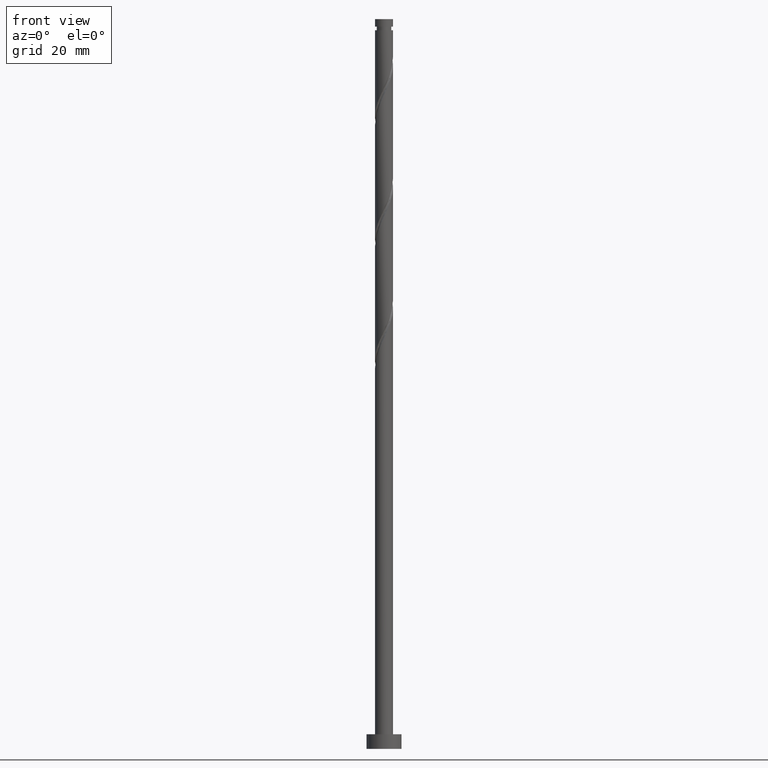
[diagram: clean part render]
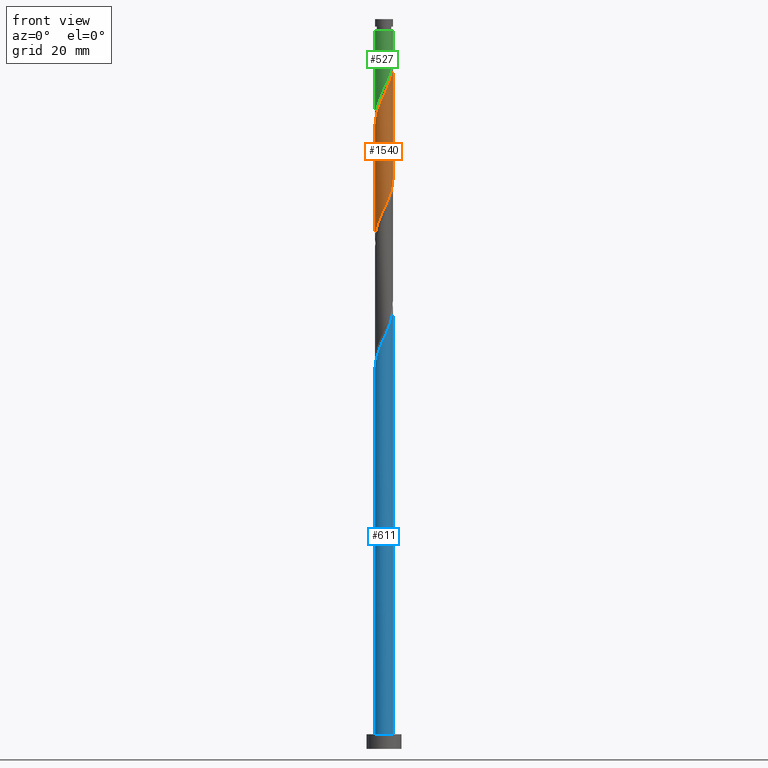
[diagram: same view with three faces highlighted in distinct colors, each labeled with its STEP entity id]
A machine part, front view with three faces highlighted in distinct colors.
Their STEP definitions:

[orange] entity #1540 — the highlighted cylindrical surface (edge-blend (fillet) strip) has radius 3.1 mm, axis along (-0, -0, -1).
#12 = CARTESIAN_POINT ( 'NONE',  ( -2.249877174969357796, -2.165579781819274352, 179.6742107631080785 ) ) ;
#26 = EDGE_LOOP ( 'NONE', ( #1760, #1744, #773, #1634 ) ) ;
#29 = CARTESIAN_POINT ( 'NONE',  ( -3.100000000000004974, -3.365086169989463498E-15, 213.6026991436264098 ) ) ;
#37 = CARTESIAN_POINT ( 'NONE',  ( -3.060313128317948994, -0.6214230849569027937, 214.9306210195183837 ) ) ;
#67 = CARTESIAN_POINT ( 'NONE',  ( 2.702756997303928266, -1.564221118447518100, 230.9562620451593205 ) ) ;
#97 = CARTESIAN_POINT ( 'NONE',  ( 2.941491420319844341, -0.9785848068434037650, 193.2960056349029117 ) ) ;
#162 = CARTESIAN_POINT ( 'NONE',  ( 1.227034829342569244, -2.871596876557147571, 187.6870312759285753 ) ) ;
#191 = CARTESIAN_POINT ( 'NONE',  ( -1.227034829342573019, -2.871596876557151123, 221.3408774297747073 ) ) ;
#198 = VECTOR ( 'NONE', #568, 1000.000000000000000 ) ;
#213 = EDGE_CURVE ( 'NONE', #940, #393, #728, .T. ) ;
#216 = CARTESIAN_POINT ( 'NONE',  ( 3.100000000000005418, -1.301166652395925986E-15, 234.4360324769597810 ) ) ;
#237 = CARTESIAN_POINT ( 'NONE',  ( 2.249877174969360460, -2.165579781819279237, 229.3536979425952325 ) ) ;
#252 = EDGE_CURVE ( 'NONE', #254, #551, #858, .T. ) ;
#254 = VERTEX_POINT ( 'NONE', #986 ) ;
#288 = CARTESIAN_POINT ( 'NONE',  ( -0.6168922110061065833, -3.037999999999998924, 183.6806210195183269 ) ) ;
#296 = DIRECTION ( 'NONE',  ( -0.000000000000000000, -0.000000000000000000, -1.000000000000000000 ) ) ;
#298 = CARTESIAN_POINT ( 'NONE',  ( -0.9857721960353348356, -2.963095724305272238, 182.8793389682362829 ) ) ;
#308 = CARTESIAN_POINT ( 'NONE',  ( -3.100000000000000533, -0.2518949594648391410, 175.1315769660918704 ) ) ;
#345 = CARTESIAN_POINT ( 'NONE',  ( 2.850659702190538436, -1.218088363915763805, 231.7575440964413644 ) ) ;
#391 =( BOUNDED_CURVE ( )  B_SPLINE_CURVE ( 2, ( #29, #607, #1033, #37, #1593, #1182, #1005, #1043, #588, #896, #762, #191, #1321, #1153, #476, #768, #1616, #655, #1495, #1052, #1633, #237, #484, #67, #345, #1785, #930, #952, #216 ),
 .UNSPECIFIED., .F., .T. ) 
 B_SPLINE_CURVE_WITH_KNOTS ( ( 3, 2, 2, 2, 2, 2, 2, 2, 2, 2, 2, 2, 2, 2, 3 ),
 ( 0.5545271625973829943, 0.5576923076923077094, 0.5673076923076922906, 0.5769230769230768718, 0.5865384615384615641, 0.5961538461538461453, 0.6057692307692308376, 0.6153846153846154188, 0.6250000000000000000, 0.6346153846153845812, 0.6442307692307691624, 0.6538461538461538547, 0.6634615384615384359, 0.6730769230769231282, 0.6795271625973829943 ),
 .UNSPECIFIED. ) 
 CURVE ( )  GEOMETRIC_REPRESENTATION_ITEM ( )  RATIONAL_B_SPLINE_CURVE ( ( 0.9061636035682938406, 0.9069090390690823789, 0.9090909090909391477, 0.9024626128164425776, 0.9090909090909391477, 0.9024626128164425776, 0.9090909090909391477, 0.9024626128164425776, 0.9090909090909391477, 0.9024626128164425776, 0.9090909090909391477, 0.9024626128164425776, 0.9090909090909391477, 0.9024626128164425776, 0.9090909090909391477, 0.9024626128164425776, 0.9090909090909391477, 0.9024626128164425776, 0.9090909090909391477, 0.9024626128164425776, 0.9090909090909391477, 0.9024626128164425776, 0.9090909090909391477, 0.9024626128164425776, 0.9090909090909391477, 0.9024626128164425776, 0.9090909090909391477, 0.9046444828382993464, 0.9061636035682938406 ) ) 
 REPRESENTATION_ITEM ( '' )  );
#393 = VERTEX_POINT ( 'NONE', #1120 ) ;
#422 = CARTESIAN_POINT ( 'NONE',  ( -3.059332338079530089, -0.5004854095583951556, 175.6678005066978017 ) ) ;
#431 = CARTESIAN_POINT ( 'NONE',  ( 0.8655980712550801481, -2.976699511042302237, 186.8857492246465029 ) ) ;
#476 = CARTESIAN_POINT ( 'NONE',  ( -0.1280745435953581091, -3.097353210611097918, 223.7447235836208392 ) ) ;
#484 = CARTESIAN_POINT ( 'NONE',  ( 2.476317086136644807, -1.864900450133398335, 230.1549799938773333 ) ) ;
#546 = CARTESIAN_POINT ( 'NONE',  ( 3.099999999999999201, -0.1232967040439896661, 195.1610386464438420 ) ) ;
#551 = VERTEX_POINT ( 'NONE', #582 ) ;
#560 = CARTESIAN_POINT ( 'NONE',  ( -1.326007432615845527, -2.802089272069598014, 182.0780569169542105 ) ) ;
#568 = DIRECTION ( 'NONE',  ( -0.000000000000000000, -0.000000000000000000, -1.000000000000000000 ) ) ;
#570 = CARTESIAN_POINT ( 'NONE',  ( 0.5041613131675897197, -3.081802145527458237, 186.0844671733645157 ) ) ;
#578 = CARTESIAN_POINT ( 'NONE',  ( 2.149790266979321185, -2.233473037222740931, 190.0908774297747073 ) ) ;
#582 = CARTESIAN_POINT ( 'NONE',  ( -3.099999999999999645, -5.384137871983187194E-15, 174.5918762287435584 ) ) ;
#588 = CARTESIAN_POINT ( 'NONE',  ( -2.149790266979325626, -2.233473037222744484, 218.9370312759286037 ) ) ;
#607 = CARTESIAN_POINT ( 'NONE',  ( -3.100000000000006306, -0.1232967040439696543, 213.8668700592593552 ) ) ;
#631 = CARTESIAN_POINT ( 'NONE',  ( 2.621826352477048871, -1.654093884112051382, 191.6934415323388521 ) ) ;
#655 = CARTESIAN_POINT ( 'NONE',  ( 0.9857721960353340585, -2.963095724305278011, 226.1485697374669996 ) ) ;
#728 = LINE ( 'NONE', #1715, #1215 ) ;
#762 = CARTESIAN_POINT ( 'NONE',  ( -1.552816185334434218, -2.683050855754219199, 220.5395953784926633 ) ) ;
#768 = CARTESIAN_POINT ( 'NONE',  ( 0.2480122259768770543, -3.112904275694731826, 224.5460056349029117 ) ) ;
#773 = ORIENTED_EDGE ( 'NONE', *, *, #252, .T. ) ;
#809 = CARTESIAN_POINT ( 'NONE',  ( 3.060313128317944109, -0.6214230849569032378, 194.0972876861849556 ) ) ;
#850 = CARTESIAN_POINT ( 'NONE',  ( -2.850659702190533551, -1.218088363915760253, 177.2703646092619181 ) ) ;
#858 = LINE ( 'NONE', #1143, #198 ) ;
#882 =( BOUNDED_CURVE ( )  B_SPLINE_CURVE ( 2, ( #945, #546, #1094, #809, #97, #1499, #631, #1197, #578, #1697, #1572, #162, #431, #570, #1294, #1151, #288, #298, #560, #1304, #1688, #12, #1438, #1680, #850, #1278, #422, #308, #1142 ),
 .UNSPECIFIED., .F., .T. ) 
 B_SPLINE_CURVE_WITH_KNOTS ( ( 3, 2, 2, 2, 2, 2, 2, 2, 2, 2, 2, 2, 2, 2, 3 ),
 ( 0.5545271625973834384, 0.5576923076923077094, 0.5673076923076922906, 0.5769230769230768718, 0.5865384615384615641, 0.5961538461538461453, 0.6057692307692307265, 0.6153846153846154188, 0.6250000000000000000, 0.6346153846153845812, 0.6442307692307692735, 0.6538461538461538547, 0.6634615384615384359, 0.6730769230769231282, 0.6795271625973833274 ),
 .UNSPECIFIED. ) 
 CURVE ( )  GEOMETRIC_REPRESENTATION_ITEM ( )  RATIONAL_B_SPLINE_CURVE ( ( 0.9061636035682865131, 0.9069090390690751624, 0.9090909090909315982, 0.9024626128164350281, 0.9090909090909315982, 0.9024626128164350281, 0.9090909090909315982, 0.9024626128164350281, 0.9090909090909315982, 0.9024626128164350281, 0.9090909090909315982, 0.9024626128164350281, 0.9090909090909315982, 0.9024626128164350281, 0.9090909090909315982, 0.9024626128164350281, 0.9090909090909315982, 0.9024626128164350281, 0.9090909090909315982, 0.9024626128164350281, 0.9090909090909315982, 0.9024626128164350281, 0.9090909090909315982, 0.9024626128164350281, 0.9090909090909315982, 0.9024626128164350281, 0.9090909090909315982, 0.9046444828382915748, 0.9061636035682864021 ) ) 
 REPRESENTATION_ITEM ( '' )  );
#896 = CARTESIAN_POINT ( 'NONE',  ( -1.878597541326294751, -2.494504834951287275, 219.7383133272106477 ) ) ;
#920 = CARTESIAN_POINT ( 'NONE',  ( 0.000000000000000000, 0.000000000000000000, 250.0000000000000000 ) ) ;
#930 = CARTESIAN_POINT ( 'NONE',  ( 3.059332338079534974, -0.5004854095583980422, 233.3601081990055093 ) ) ;
#939 = FACE_OUTER_BOUND ( 'NONE', #26, .T. ) ;
#940 = VERTEX_POINT ( 'NONE', #1035 ) ;
#945 = CARTESIAN_POINT ( 'NONE',  ( 3.099999999999999645, 4.112883096653824131E-15, 195.4252095620768159 ) ) ;
#952 = CARTESIAN_POINT ( 'NONE',  ( 3.100000000000003642, -0.2518949594648535739, 233.8963317396114405 ) ) ;
#986 = CARTESIAN_POINT ( 'NONE',  ( -3.100000000000004974, -3.365086169989463498E-15, 213.6026991436264098 ) ) ;
#1005 = CARTESIAN_POINT ( 'NONE',  ( -2.621826352477054645, -1.654093884112052271, 217.3344671733644304 ) ) ;
#1033 = CARTESIAN_POINT ( 'NONE',  ( -3.090207698699935168, -0.2462039376120586376, 214.1293389682362545 ) ) ;
#1035 = CARTESIAN_POINT ( 'NONE',  ( 3.100000000000005418, -1.301166652395925986E-15, 234.4360324769597810 ) ) ;
#1043 = CARTESIAN_POINT ( 'NONE',  ( -2.420982992632356723, -1.972441239494201470, 218.1357492246465029 ) ) ;
#1052 = CARTESIAN_POINT ( 'NONE',  ( 1.666242669196356774, -2.641082819833930451, 227.7511338400311161 ) ) ;
#1094 = CARTESIAN_POINT ( 'NONE',  ( 3.090207698699929395, -0.2462039376120615797, 194.8985697374670281 ) ) ;
#1120 = CARTESIAN_POINT ( 'NONE',  ( 3.099999999999999645, 4.112883096653824131E-15, 195.4252095620768159 ) ) ;
#1142 = CARTESIAN_POINT ( 'NONE',  ( -3.099999999999999645, -5.384137871983187194E-15, 174.5918762287435584 ) ) ;
#1143 = CARTESIAN_POINT ( 'NONE',  ( -3.100000000000000089, 0.000000000000000000, 250.0000000000000000 ) ) ;
#1151 = CARTESIAN_POINT ( 'NONE',  ( -0.2480122259768793302, -3.112904275694726053, 184.4819030708003140 ) ) ;
#1153 = CARTESIAN_POINT ( 'NONE',  ( -0.5041613131675932724, -3.081802145527462677, 222.9434415323388237 ) ) ;
#1182 = CARTESIAN_POINT ( 'NONE',  ( -2.822669712321751234, -1.335746528729903071, 216.5331851220824149 ) ) ;
#1197 = CARTESIAN_POINT ( 'NONE',  ( 2.420982992632351394, -1.972441239494201248, 190.8921594810567797 ) ) ;
#1201 = CYLINDRICAL_SURFACE ( 'NONE', #1512, 3.100000000000000089 ) ;
#1215 = VECTOR ( 'NONE', #296, 1000.000000000000000 ) ;
#1278 = CARTESIAN_POINT ( 'NONE',  ( -2.998562407077144165, -0.8719556093840072908, 176.4690825579798457 ) ) ;
#1294 = CARTESIAN_POINT ( 'NONE',  ( 0.1280745435953551115, -3.097353210611092145, 185.2831851220824149 ) ) ;
#1304 = CARTESIAN_POINT ( 'NONE',  ( -1.666242669196356552, -2.641082819833925566, 181.2767748656721949 ) ) ;
#1321 = CARTESIAN_POINT ( 'NONE',  ( -0.8655980712550831457, -2.976699511042307567, 222.1421594810567797 ) ) ;
#1403 = EDGE_CURVE ( 'NONE', #393, #551, #882, .T. ) ;
#1438 = CARTESIAN_POINT ( 'NONE',  ( -2.476317086136642143, -1.864900450133393450, 178.8729287118259776 ) ) ;
#1459 = EDGE_CURVE ( 'NONE', #254, #940, #391, .T. ) ;
#1485 = DIRECTION ( 'NONE',  ( -1.000000000000000000, 0.000000000000000000, 0.000000000000000000 ) ) ;
#1495 = CARTESIAN_POINT ( 'NONE',  ( 1.326007432615845305, -2.802089272069604231, 226.9498517887490721 ) ) ;
#1499 = CARTESIAN_POINT ( 'NONE',  ( 2.822669712321746793, -1.335746528729901739, 192.4947235836208677 ) ) ;
#1512 = AXIS2_PLACEMENT_3D ( 'NONE', #920, #1754, #1485 ) ;
#1540 = ADVANCED_FACE ( 'NONE', ( #939 ), #1201, .T. ) ;
#1572 = CARTESIAN_POINT ( 'NONE',  ( 1.552816185334429333, -2.683050855754215647, 188.4883133272106761 ) ) ;
#1593 = CARTESIAN_POINT ( 'NONE',  ( -2.941491420319850114, -0.9785848068434026548, 215.7319030708004277 ) ) ;
#1616 = CARTESIAN_POINT ( 'NONE',  ( 0.6168922110061061392, -3.038000000000004697, 225.3472876861849556 ) ) ;
#1633 = CARTESIAN_POINT ( 'NONE',  ( 1.958059922082859172, -2.403331300826604178, 228.5524158913131316 ) ) ;
#1634 = ORIENTED_EDGE ( 'NONE', *, *, #1403, .F. ) ;
#1680 = CARTESIAN_POINT ( 'NONE',  ( -2.702756997303925157, -1.564221118447513215, 178.0716466605440189 ) ) ;
#1688 = CARTESIAN_POINT ( 'NONE',  ( -1.958059922082856952, -2.403331300826598849, 180.4754928143900656 ) ) ;
#1697 = CARTESIAN_POINT ( 'NONE',  ( 1.878597541326289866, -2.494504834951285499, 189.2895953784927485 ) ) ;
#1715 = CARTESIAN_POINT ( 'NONE',  ( 3.100000000000000089, 3.796405077356794918E-16, 250.0000000000000000 ) ) ;
#1744 = ORIENTED_EDGE ( 'NONE', *, *, #1459, .F. ) ;
#1754 = DIRECTION ( 'NONE',  ( -0.000000000000000000, -0.000000000000000000, -1.000000000000000000 ) ) ;
#1760 = ORIENTED_EDGE ( 'NONE', *, *, #213, .F. ) ;
#1785 = CARTESIAN_POINT ( 'NONE',  ( 2.998562407077147274, -0.8719556093840112876, 232.5588261477233800 ) ) ;

[blue] entity #611 — the highlighted cylindrical surface (edge-blend (fillet) strip) has radius 3.1 mm, axis along (-0, -0, -1).
#19 = CARTESIAN_POINT ( 'NONE',  ( -3.060313128317948994, -0.6214230849569027937, 131.5972876861849556 ) ) ;
#47 = VECTOR ( 'NONE', #672, 1000.000000000000000 ) ;
#66 =( BOUNDED_CURVE ( )  B_SPLINE_CURVE ( 2, ( #467, #1297, #1691, #19, #1462, #999, #446, #1424, #456, #1595, #1015, #1430, #165, #1146, #573, #1021, #608, #176, #1034, #1558, #146, #1138, #1583, #1575, #722, #186, #291, #1290, #870 ),
 .UNSPECIFIED., .F., .T. ) 
 B_SPLINE_CURVE_WITH_KNOTS ( ( 3, 2, 2, 2, 2, 2, 2, 2, 2, 2, 2, 2, 2, 2, 3 ),
 ( 0.05452716259738342452, 0.05769230769230770939, 0.06730769230769229061, 0.07692307692307687184, 0.08653846153846156408, 0.09615384615384614531, 0.1057692307692307265, 0.1153846153846154188, 0.1250000000000000000, 0.1346153846153845812, 0.1442307692307692735, 0.1538461538461538547, 0.1634615384615384359, 0.1730769230769231282, 0.1795271625973834939 ),
 .UNSPECIFIED. ) 
 CURVE ( )  GEOMETRIC_REPRESENTATION_ITEM ( )  RATIONAL_B_SPLINE_CURVE ( ( 0.9061636035682940626, 0.9069090390690827119, 0.9090909090909391477, 0.9024626128164425776, 0.9090909090909391477, 0.9024626128164425776, 0.9090909090909391477, 0.9024626128164425776, 0.9090909090909391477, 0.9024626128164425776, 0.9090909090909391477, 0.9024626128164425776, 0.9090909090909391477, 0.9024626128164425776, 0.9090909090909391477, 0.9024626128164425776, 0.9090909090909391477, 0.9024626128164425776, 0.9090909090909391477, 0.9024626128164425776, 0.9090909090909391477, 0.9024626128164425776, 0.9090909090909391477, 0.9024626128164425776, 0.9090909090909391477, 0.9024626128164425776, 0.9090909090909391477, 0.9046444828382990133, 0.9061636035682940626 ) ) 
 REPRESENTATION_ITEM ( '' )  );
#93 = CARTESIAN_POINT ( 'NONE',  ( 3.100000000000005418, 1.600285423061656395E-15, 151.1026991436264382 ) ) ;
#146 = CARTESIAN_POINT ( 'NONE',  ( 1.958059922082859172, -2.403331300826604178, 145.2190825579798457 ) ) ;
#165 = CARTESIAN_POINT ( 'NONE',  ( -0.8655980712550831457, -2.976699511042307567, 138.8088261477234653 ) ) ;
#173 = VERTEX_POINT ( 'NONE', #992 ) ;
#176 = CARTESIAN_POINT ( 'NONE',  ( 0.9857721960353340585, -2.963095724305278011, 142.8152364041337421 ) ) ;
#177 = CARTESIAN_POINT ( 'NONE',  ( 3.100000000000000089, 3.796405077356794918E-16, 250.0000000000000000 ) ) ;
#183 = ORIENTED_EDGE ( 'NONE', *, *, #1003, .F. ) ;
#186 = CARTESIAN_POINT ( 'NONE',  ( 2.998562407077147274, -0.8719556093840112876, 149.2254928143900656 ) ) ;
#245 = ORIENTED_EDGE ( 'NONE', *, *, #1723, .T. ) ;
#291 = CARTESIAN_POINT ( 'NONE',  ( 3.059332338079534974, -0.5004854095583980422, 150.0267748656721665 ) ) ;
#302 = CARTESIAN_POINT ( 'NONE',  ( 0.000000000000000000, 0.000000000000000000, 250.0000000000000000 ) ) ;
#323 = FACE_OUTER_BOUND ( 'NONE', #1671, .T. ) ;
#373 = CARTESIAN_POINT ( 'NONE',  ( -3.100000000000000089, 0.000000000000000000, 250.0000000000000000 ) ) ;
#446 = CARTESIAN_POINT ( 'NONE',  ( -2.621826352477054645, -1.654093884112052271, 134.0011338400310876 ) ) ;
#456 = CARTESIAN_POINT ( 'NONE',  ( -2.149790266979325626, -2.233473037222744484, 135.6036979425952609 ) ) ;
#467 = CARTESIAN_POINT ( 'NONE',  ( -3.100000000000005418, -1.057384854303355899E-14, 130.2693658102931238 ) ) ;
#536 = VECTOR ( 'NONE', #755, 1000.000000000000000 ) ;
#573 = CARTESIAN_POINT ( 'NONE',  ( -0.1280745435953581091, -3.097353210611097918, 140.4113902502875533 ) ) ;
#586 = EDGE_CURVE ( 'NONE', #953, #1669, #66, .T. ) ;
#599 = CARTESIAN_POINT ( 'NONE',  ( -3.100000000000005418, -1.057384854303356057E-14, 130.2693658102931238 ) ) ;
#608 = CARTESIAN_POINT ( 'NONE',  ( 0.6168922110061061392, -3.038000000000004697, 142.0139543528516697 ) ) ;
#611 = ADVANCED_FACE ( 'NONE', ( #323 ), #1282, .T. ) ;
#646 = CARTESIAN_POINT ( 'NONE',  ( -3.100000000000000089, 0.000000000000000000, 5.000000000000000000 ) ) ;
#672 = DIRECTION ( 'NONE',  ( -0.000000000000000000, -0.000000000000000000, -1.000000000000000000 ) ) ;
#673 = VERTEX_POINT ( 'NONE', #646 ) ;
#722 = CARTESIAN_POINT ( 'NONE',  ( 2.850659702190538436, -1.218088363915763805, 148.4242107631080501 ) ) ;
#738 = ORIENTED_EDGE ( 'NONE', *, *, #586, .F. ) ;
#755 = DIRECTION ( 'NONE',  ( -0.000000000000000000, -0.000000000000000000, -1.000000000000000000 ) ) ;
#770 = LINE ( 'NONE', #177, #536 ) ;
#803 = DIRECTION ( 'NONE',  ( 0.000000000000000000, 0.000000000000000000, 1.000000000000000000 ) ) ;
#870 = CARTESIAN_POINT ( 'NONE',  ( 3.100000000000005418, 1.600285423061656395E-15, 151.1026991436264098 ) ) ;
#878 = DIRECTION ( 'NONE',  ( -1.000000000000000000, 0.000000000000000000, 0.000000000000000000 ) ) ;
#917 = CIRCLE ( 'NONE', #1157, 3.100000000000000089 ) ;
#937 = ORIENTED_EDGE ( 'NONE', *, *, #1641, .T. ) ;
#953 = VERTEX_POINT ( 'NONE', #599 ) ;
#992 = CARTESIAN_POINT ( 'NONE',  ( 3.100000000000000089, 3.796405077356794918E-16, 5.000000000000000000 ) ) ;
#999 = CARTESIAN_POINT ( 'NONE',  ( -2.822669712321751234, -1.335746528729903071, 133.1998517887490436 ) ) ;
#1003 = EDGE_CURVE ( 'NONE', #1669, #173, #770, .T. ) ;
#1015 = CARTESIAN_POINT ( 'NONE',  ( -1.552816185334434218, -2.683050855754219199, 137.2062620451592920 ) ) ;
#1021 = CARTESIAN_POINT ( 'NONE',  ( 0.2480122259768770543, -3.112904275694731826, 141.2126723015696541 ) ) ;
#1034 = CARTESIAN_POINT ( 'NONE',  ( 1.326007432615845305, -2.802089272069604231, 143.6165184554157577 ) ) ;
#1080 = CARTESIAN_POINT ( 'NONE',  ( 0.000000000000000000, 0.000000000000000000, 5.000000000000000000 ) ) ;
#1138 = CARTESIAN_POINT ( 'NONE',  ( 2.249877174969360460, -2.165579781819279237, 146.0203646092618897 ) ) ;
#1146 = CARTESIAN_POINT ( 'NONE',  ( -0.5041613131675932724, -3.081802145527462677, 139.6101081990055093 ) ) ;
#1157 = AXIS2_PLACEMENT_3D ( 'NONE', #1080, #803, #1362 ) ;
#1220 = LINE ( 'NONE', #373, #47 ) ;
#1282 = CYLINDRICAL_SURFACE ( 'NONE', #1677, 3.100000000000000089 ) ;
#1290 = CARTESIAN_POINT ( 'NONE',  ( 3.100000000000006750, -0.2518949594648353107, 150.5629984062781261 ) ) ;
#1297 = CARTESIAN_POINT ( 'NONE',  ( -3.100000000000004086, -0.1232967040439863216, 130.5335367259260408 ) ) ;
#1362 = DIRECTION ( 'NONE',  ( 1.000000000000000000, 0.000000000000000000, 0.000000000000000000 ) ) ;
#1424 = CARTESIAN_POINT ( 'NONE',  ( -2.420982992632356723, -1.972441239494201470, 134.8024158913131885 ) ) ;
#1430 = CARTESIAN_POINT ( 'NONE',  ( -1.227034829342573019, -2.871596876557151123, 138.0075440964414213 ) ) ;
#1462 = CARTESIAN_POINT ( 'NONE',  ( -2.941491420319850114, -0.9785848068434026548, 132.3985697374670281 ) ) ;
#1558 = CARTESIAN_POINT ( 'NONE',  ( 1.666242669196356774, -2.641082819833930451, 144.4178005066978017 ) ) ;
#1575 = CARTESIAN_POINT ( 'NONE',  ( 2.702756997303928266, -1.564221118447518100, 147.6229287118259776 ) ) ;
#1583 = CARTESIAN_POINT ( 'NONE',  ( 2.476317086136644807, -1.864900450133398335, 146.8216466605439336 ) ) ;
#1595 = CARTESIAN_POINT ( 'NONE',  ( -1.878597541326294751, -2.494504834951287275, 136.4049799938773049 ) ) ;
#1641 = EDGE_CURVE ( 'NONE', #953, #673, #1220, .T. ) ;
#1669 = VERTEX_POINT ( 'NONE', #93 ) ;
#1671 = EDGE_LOOP ( 'NONE', ( #183, #738, #937, #245 ) ) ;
#1677 = AXIS2_PLACEMENT_3D ( 'NONE', #302, #1700, #878 ) ;
#1691 = CARTESIAN_POINT ( 'NONE',  ( -3.090207698699935168, -0.2462039376120586376, 130.7960056349029117 ) ) ;
#1700 = DIRECTION ( 'NONE',  ( -0.000000000000000000, -0.000000000000000000, -1.000000000000000000 ) ) ;
#1723 = EDGE_CURVE ( 'NONE', #673, #173, #917, .T. ) ;

[green] entity #527 — the highlighted cylindrical surface (edge-blend (fillet) strip) has radius 3.1 mm, axis along (-0, -0, -1).
#13 = CIRCLE ( 'NONE', #286, 3.099999999999982325 ) ;
#14 = VERTEX_POINT ( 'NONE', #822 ) ;
#30 = DIRECTION ( 'NONE',  ( -1.000000000000000000, 0.000000000000000000, 0.000000000000000000 ) ) ;
#35 = ORIENTED_EDGE ( 'NONE', *, *, #1735, .F. ) ;
#50 = CARTESIAN_POINT ( 'NONE',  ( -2.249877174969357796, -2.165579781819274352, 221.3408774297747641 ) ) ;
#103 = CARTESIAN_POINT ( 'NONE',  ( -0.6168922110061065833, -3.037999999999998924, 225.3472876861849841 ) ) ;
#104 = ORIENTED_EDGE ( 'NONE', *, *, #1620, .F. ) ;
#112 = EDGE_CURVE ( 'NONE', #328, #1081, #1100, .T. ) ;
#156 = FACE_OUTER_BOUND ( 'NONE', #318, .T. ) ;
#168 = CARTESIAN_POINT ( 'NONE',  ( -3.099999999999999645, -3.948367772787669872E-15, 216.2585428954101587 ) ) ;
#208 = CARTESIAN_POINT ( 'NONE',  ( 0.000000000000000000, 0.000000000000000000, 246.1806210195182985 ) ) ;
#238 = ORIENTED_EDGE ( 'NONE', *, *, #862, .T. ) ;
#246 = CARTESIAN_POINT ( 'NONE',  ( 1.227034829342569244, -2.871596876557147571, 229.3536979425952893 ) ) ;
#262 =( BOUNDED_CURVE ( )  B_SPLINE_CURVE ( 2, ( #663, #1230, #911, #1236, #1474, #680, #1795, #1384, #381, #529, #1101, #246, #1524, #823, #961, #1655, #103, #1323, #1023, #304, #1577, #50, #1007, #448, #1741, #591, #313, #629, #1721 ),
 .UNSPECIFIED., .F., .T. ) 
 B_SPLINE_CURVE_WITH_KNOTS ( ( 3, 2, 2, 2, 2, 2, 2, 2, 2, 2, 2, 2, 2, 2, 3 ),
 ( 0.3045271625973831608, 0.3076923076923077094, 0.3173076923076922906, 0.3269230769230769273, 0.3365384615384615641, 0.3461538461538461453, 0.3557692307692307820, 0.3653846153846153633, 0.3750000000000000000, 0.3846153846153846367, 0.3942307692307692180, 0.4038461538461538547, 0.4134615384615384359, 0.4230769230769230727, 0.4295271625973833274 ),
 .UNSPECIFIED. ) 
 CURVE ( )  GEOMETRIC_REPRESENTATION_ITEM ( )  RATIONAL_B_SPLINE_CURVE ( ( 0.9061636035682865131, 0.9069090390690750514, 0.9090909090909315982, 0.9024626128164350281, 0.9090909090909315982, 0.9024626128164350281, 0.9090909090909315982, 0.9024626128164350281, 0.9090909090909315982, 0.9024626128164350281, 0.9090909090909315982, 0.9024626128164350281, 0.9090909090909315982, 0.9024626128164350281, 0.9090909090909315982, 0.9024626128164350281, 0.9090909090909315982, 0.9024626128164350281, 0.9090909090909315982, 0.9024626128164350281, 0.9090909090909315982, 0.9024626128164350281, 0.9090909090909315982, 0.9024626128164350281, 0.9090909090909315982, 0.9024626128164350281, 0.9090909090909315982, 0.9046444828382915748, 0.9061636035682864021 ) ) 
 REPRESENTATION_ITEM ( '' )  );
#284 = VECTOR ( 'NONE', #960, 1000.000000000000000 ) ;
#286 = AXIS2_PLACEMENT_3D ( 'NONE', #208, #763, #1338 ) ;
#304 = CARTESIAN_POINT ( 'NONE',  ( -1.666242669196356552, -2.641082819833925566, 222.9434415323388521 ) ) ;
#313 = CARTESIAN_POINT ( 'NONE',  ( -3.059332338079530089, -0.5004854095583951556, 217.3344671733644589 ) ) ;
#318 = EDGE_LOOP ( 'NONE', ( #104, #238, #464, #35 ) ) ;
#328 = VERTEX_POINT ( 'NONE', #699 ) ;
#381 = CARTESIAN_POINT ( 'NONE',  ( 2.149790266979321185, -2.233473037222740931, 231.7575440964414213 ) ) ;
#448 = CARTESIAN_POINT ( 'NONE',  ( -2.702756997303925157, -1.564221118447513215, 219.7383133272106761 ) ) ;
#464 = ORIENTED_EDGE ( 'NONE', *, *, #112, .T. ) ;
#527 = ADVANCED_FACE ( 'NONE', ( #156 ), #1836, .T. ) ;
#529 = CARTESIAN_POINT ( 'NONE',  ( 1.878597541326289866, -2.494504834951285499, 230.9562620451593489 ) ) ;
#591 = CARTESIAN_POINT ( 'NONE',  ( -2.998562407077144165, -0.8719556093840072908, 218.1357492246465313 ) ) ;
#629 = CARTESIAN_POINT ( 'NONE',  ( -3.100000000000000533, -0.2518949594648383639, 216.7982436327585276 ) ) ;
#663 = CARTESIAN_POINT ( 'NONE',  ( 3.099999999999999645, -1.675065115728102555E-15, 237.0918762287435300 ) ) ;
#680 = CARTESIAN_POINT ( 'NONE',  ( 2.822669712321746793, -1.335746528729901739, 234.1613902502876385 ) ) ;
#699 = CARTESIAN_POINT ( 'NONE',  ( -3.099999999999982325, 0.000000000000000000, 246.1806210195182985 ) ) ;
#763 = DIRECTION ( 'NONE',  ( -0.000000000000000000, -0.000000000000000000, -1.000000000000000000 ) ) ;
#822 = CARTESIAN_POINT ( 'NONE',  ( 3.099999999999982325, 3.796405077356784071E-16, 246.1806210195182985 ) ) ;
#823 = CARTESIAN_POINT ( 'NONE',  ( 0.5041613131675897197, -3.081802145527458237, 227.7511338400311729 ) ) ;
#862 = EDGE_CURVE ( 'NONE', #14, #328, #13, .T. ) ;
#864 = VECTOR ( 'NONE', #1504, 1000.000000000000000 ) ;
#879 = CARTESIAN_POINT ( 'NONE',  ( 3.099999999999999645, -1.675065115728102555E-15, 237.0918762287435300 ) ) ;
#911 = CARTESIAN_POINT ( 'NONE',  ( 3.090207698699929395, -0.2462039376120615797, 236.5652364041336853 ) ) ;
#960 = DIRECTION ( 'NONE',  ( -0.000000000000000000, -0.000000000000000000, -1.000000000000000000 ) ) ;
#961 = CARTESIAN_POINT ( 'NONE',  ( 0.1280745435953551115, -3.097353210611092145, 226.9498517887491005 ) ) ;
#1007 = CARTESIAN_POINT ( 'NONE',  ( -2.476317086136642143, -1.864900450133393450, 220.5395953784927201 ) ) ;
#1023 = CARTESIAN_POINT ( 'NONE',  ( -1.326007432615845527, -2.802089272069598014, 223.7447235836209245 ) ) ;
#1081 = VERTEX_POINT ( 'NONE', #168 ) ;
#1089 = CARTESIAN_POINT ( 'NONE',  ( 3.100000000000000089, 3.796405077356794918E-16, 250.0000000000000000 ) ) ;
#1100 = LINE ( 'NONE', #1653, #284 ) ;
#1101 = CARTESIAN_POINT ( 'NONE',  ( 1.552816185334429333, -2.683050855754215647, 230.1549799938773049 ) ) ;
#1230 = CARTESIAN_POINT ( 'NONE',  ( 3.099999999999999645, -0.1232967040439796047, 236.8277053131105276 ) ) ;
#1236 = CARTESIAN_POINT ( 'NONE',  ( 3.060313128317944109, -0.6214230849569032378, 235.7639543528516981 ) ) ;
#1244 = AXIS2_PLACEMENT_3D ( 'NONE', #1830, #1719, #30 ) ;
#1323 = CARTESIAN_POINT ( 'NONE',  ( -0.9857721960353348356, -2.963095724305272238, 224.5460056349029401 ) ) ;
#1338 = DIRECTION ( 'NONE',  ( -1.000000000000000000, 0.000000000000000000, 0.000000000000000000 ) ) ;
#1344 = LINE ( 'NONE', #1089, #864 ) ;
#1384 = CARTESIAN_POINT ( 'NONE',  ( 2.420982992632351394, -1.972441239494201248, 232.5588261477234369 ) ) ;
#1474 = CARTESIAN_POINT ( 'NONE',  ( 2.941491420319844341, -0.9785848068434037650, 234.9626723015696825 ) ) ;
#1504 = DIRECTION ( 'NONE',  ( -0.000000000000000000, -0.000000000000000000, -1.000000000000000000 ) ) ;
#1524 = CARTESIAN_POINT ( 'NONE',  ( 0.8655980712550801481, -2.976699511042302237, 228.5524158913132737 ) ) ;
#1577 = CARTESIAN_POINT ( 'NONE',  ( -1.958059922082856952, -2.403331300826598849, 222.1421594810567512 ) ) ;
#1620 = EDGE_CURVE ( 'NONE', #14, #1810, #1344, .T. ) ;
#1653 = CARTESIAN_POINT ( 'NONE',  ( -3.100000000000000089, 0.000000000000000000, 250.0000000000000000 ) ) ;
#1655 = CARTESIAN_POINT ( 'NONE',  ( -0.2480122259768793302, -3.112904275694726053, 226.1485697374670281 ) ) ;
#1719 = DIRECTION ( 'NONE',  ( -0.000000000000000000, -0.000000000000000000, -1.000000000000000000 ) ) ;
#1721 = CARTESIAN_POINT ( 'NONE',  ( -3.099999999999999645, -3.948367772787669872E-15, 216.2585428954101587 ) ) ;
#1735 = EDGE_CURVE ( 'NONE', #1810, #1081, #262, .T. ) ;
#1741 = CARTESIAN_POINT ( 'NONE',  ( -2.850659702190533551, -1.218088363915760253, 218.9370312759285468 ) ) ;
#1795 = CARTESIAN_POINT ( 'NONE',  ( 2.621826352477048871, -1.654093884112051382, 233.3601081990054524 ) ) ;
#1810 = VERTEX_POINT ( 'NONE', #879 ) ;
#1830 = CARTESIAN_POINT ( 'NONE',  ( 0.000000000000000000, 0.000000000000000000, 250.0000000000000000 ) ) ;
#1836 = CYLINDRICAL_SURFACE ( 'NONE', #1244, 3.100000000000000089 ) ;